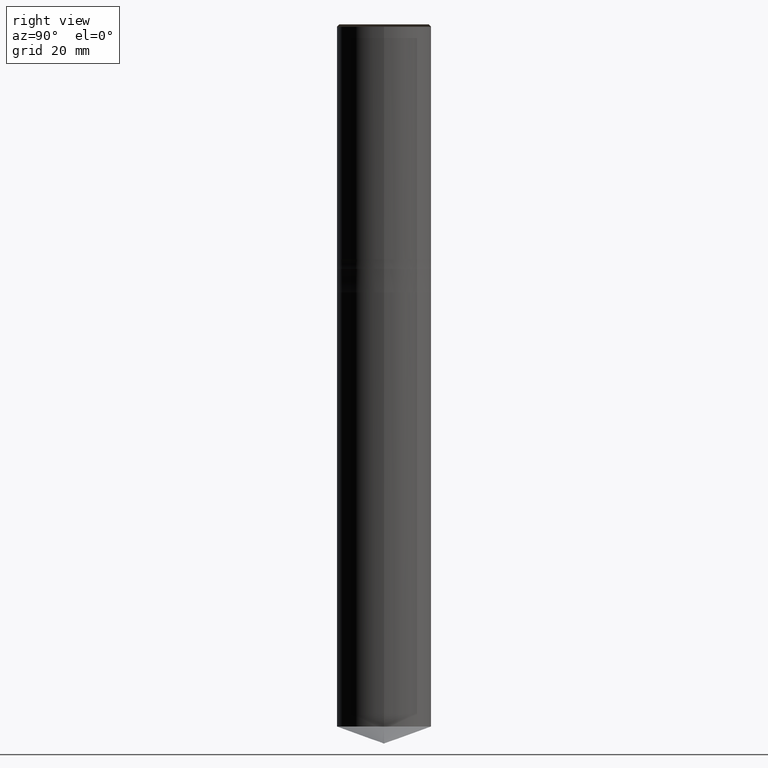
[diagram: clean part render]
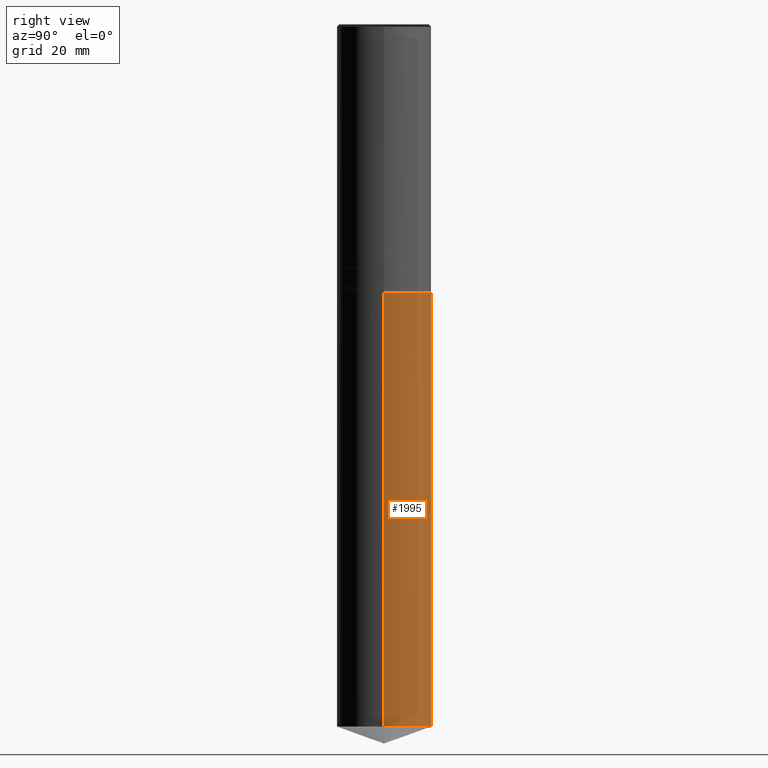
[diagram: same view with one face highlighted and labeled with its STEP entity id]
A machine part, right view. The second image highlights one B-rep face of the part: STEP entity #1995.
In plain terms, the highlighted face is a freeform B-spline surface patch.
Its self-contained STEP definition (entity closure, byte-faithful):
#1905=CARTESIAN_POINT('',(10.0,0.0,-99.360297657338));
#1906=CARTESIAN_POINT('',(10.0,10.0,-99.360297657338));
#1907=CARTESIAN_POINT('',(0.0,10.0,-99.360297657338));
#1908=CARTESIAN_POINT('',(-10.0,10.0,-99.360297657338));
#1909=CARTESIAN_POINT('',(-10.0,0.0,-99.360297657338));
#1910=CARTESIAN_POINT('',(10.0,0.0,-7.0));
#1911=CARTESIAN_POINT('',(10.0,10.0,-7.0));
#1912=CARTESIAN_POINT('',(0.0,10.0,-7.0));
#1913=CARTESIAN_POINT('',(-10.0,10.0,-7.0));
#1914=CARTESIAN_POINT('',(-10.0,0.0,-7.0));
#1976=(
BOUNDED_SURFACE()
B_SPLINE_SURFACE(1,2,(
(#1905,#1906,#1907,#1908,#1909),
(#1910,#1911,#1912,#1913,#1914)
), .UNSPECIFIED.,.F.,.F.,.F.)
B_SPLINE_SURFACE_WITH_KNOTS((2,2),(3,2,3),(
0.0,1.0),(
0.0,0.5,1.0), .UNSPECIFIED.)
GEOMETRIC_REPRESENTATION_ITEM()
RATIONAL_B_SPLINE_SURFACE(((1.0,0.707106781187,1.0,0.707106781187,1.0),
(1.0,0.707106781187,1.0,0.707106781187,1.0)
))
REPRESENTATION_ITEM('')
SURFACE()
);
#1977=(
BOUNDED_CURVE()
B_SPLINE_CURVE(2,(#1909,#1908,#1907,#1906,#1905),.UNSPECIFIED.,.F.,.F.)
B_SPLINE_CURVE_WITH_KNOTS((3,2,3),
(0.0,0.5,1.0),.UNSPECIFIED.)
CURVE()
GEOMETRIC_REPRESENTATION_ITEM()
RATIONAL_B_SPLINE_CURVE((1.0,0.707106781187,1.0,0.707106781187,1.0))
REPRESENTATION_ITEM('')
);
#1978=(
BOUNDED_CURVE()
B_SPLINE_CURVE(1,(#1905,#1910),.UNSPECIFIED.,.F.,.F.)
B_SPLINE_CURVE_WITH_KNOTS((2,2),
(0.0,1.0),.UNSPECIFIED.)
CURVE()
GEOMETRIC_REPRESENTATION_ITEM()
RATIONAL_B_SPLINE_CURVE((1.0,1.0))
REPRESENTATION_ITEM('')
);
#1979=(
BOUNDED_CURVE()
B_SPLINE_CURVE(2,(#1910,#1911,#1912,#1913,#1914),.UNSPECIFIED.,.F.,.F.)
B_SPLINE_CURVE_WITH_KNOTS((3,2,3),
(0.0,0.5,1.0),.UNSPECIFIED.)
CURVE()
GEOMETRIC_REPRESENTATION_ITEM()
RATIONAL_B_SPLINE_CURVE((1.0,0.707106781187,1.0,0.707106781187,1.0))
REPRESENTATION_ITEM('')
);
#1980=(
BOUNDED_CURVE()
B_SPLINE_CURVE(1,(#1914,#1909),.UNSPECIFIED.,.F.,.F.)
B_SPLINE_CURVE_WITH_KNOTS((2,2),
(0.0,1.0),.UNSPECIFIED.)
CURVE()
GEOMETRIC_REPRESENTATION_ITEM()
RATIONAL_B_SPLINE_CURVE((1.0,1.0))
REPRESENTATION_ITEM('')
);
#1981=VERTEX_POINT('',#1905);
#1982=VERTEX_POINT('',#1909);
#1983=VERTEX_POINT('',#1910);
#1984=VERTEX_POINT('',#1914);
#1985=EDGE_CURVE('',#1982,#1981,#1977,.T.);
#1986=EDGE_CURVE('',#1981,#1983,#1978,.T.);
#1987=EDGE_CURVE('',#1983,#1984,#1979,.T.);
#1988=EDGE_CURVE('',#1984,#1982,#1980,.T.);
#1989=ORIENTED_EDGE('',*,*,#1985,.T.);
#1990=ORIENTED_EDGE('',*,*,#1986,.T.);
#1991=ORIENTED_EDGE('',*,*,#1987,.T.);
#1992=ORIENTED_EDGE('',*,*,#1988,.T.);
#1993=EDGE_LOOP('',(#1989,#1990,#1991,#1992));
#1994=FACE_OUTER_BOUND('',#1993,.T.);
#1995=ADVANCED_FACE('',(#1994),#1976,.T.);